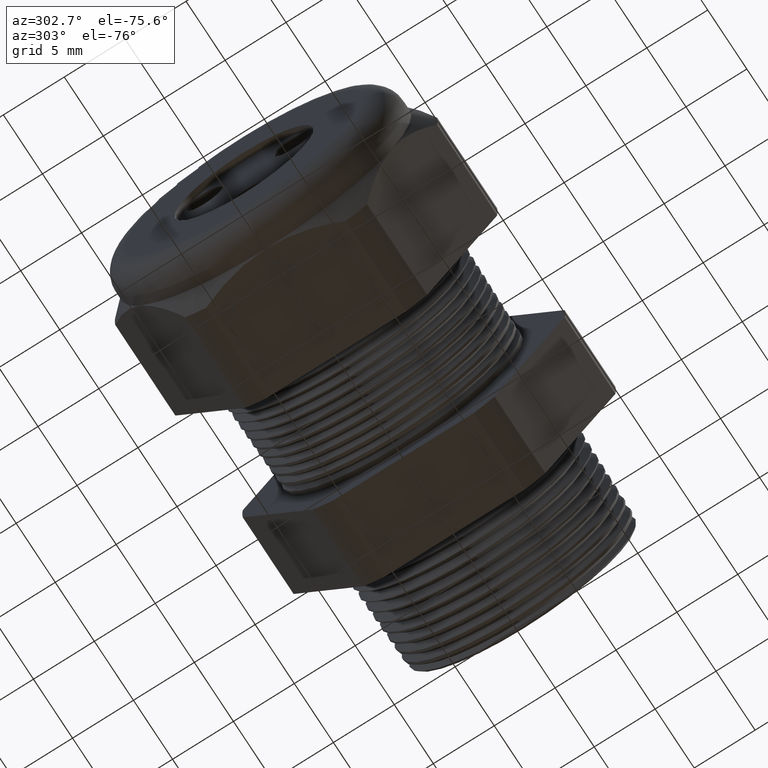
[diagram: clean part render]
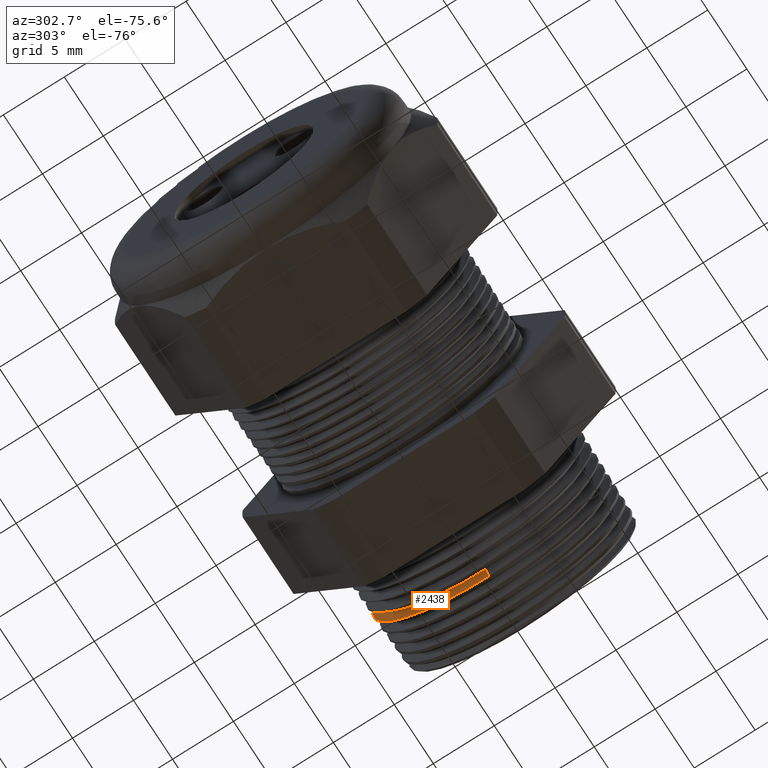
[diagram: same view with one face highlighted and labeled with its STEP entity id]
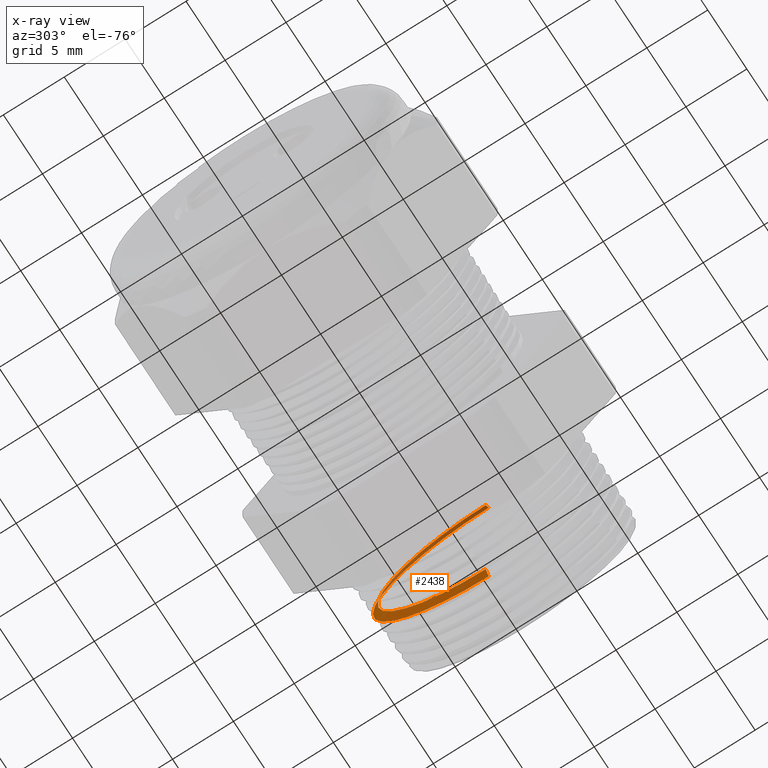
[diagram: x-ray of the same camera — body ghosted, the highlighted face saturated]
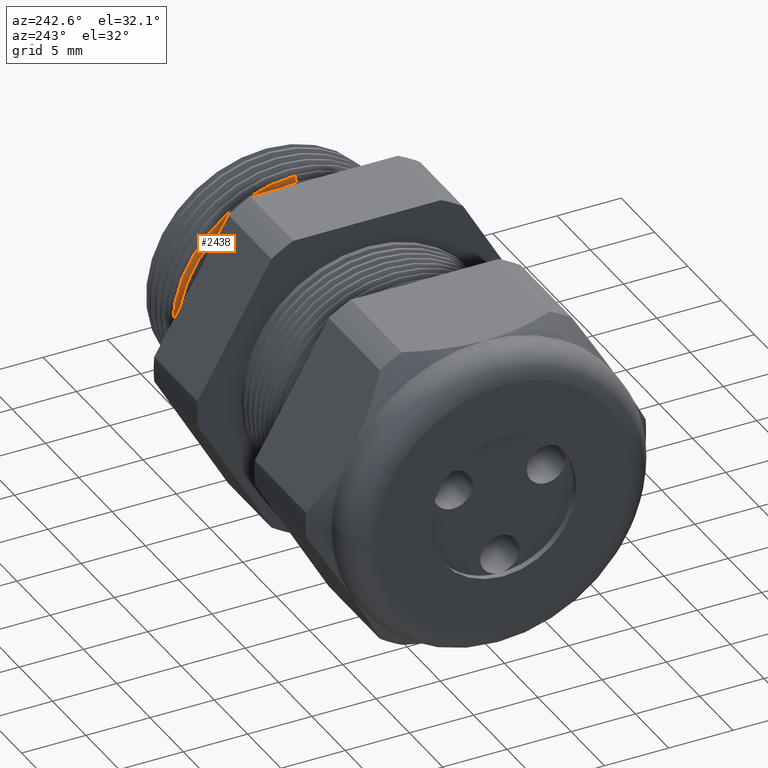
[diagram: same view with one face highlighted and labeled with its STEP entity id]
A machine part, auxiliary view. The second image highlights one B-rep face of the part: STEP entity #2438.
The next image is the same camera in x-ray: the body ghosted, the highlighted face saturated — about 30% of this face is hidden behind the body in this view.
A second angle (auxiliary view) of the same face is appended — the face is thin or edge-on in the first view.
In plain terms, the highlighted conical surface has half-angle 58.5 deg.
Its self-contained STEP definition (entity closure, byte-faithful):
#91 = CARTESIAN_POINT ( 'NONE',  ( -0.1534707356790752100, 0.0000000000000000000, 0.3489649185127733400 ) ) ;
#92 = CARTESIAN_POINT ( 'NONE',  ( -0.1534707356790752100, 4.437226321388159300E-017, -0.3489649185127733400 ) ) ;
#93 = DIRECTION ( 'NONE',  ( 0.0000000000000000000, 0.0000000000000000000, -1.000000000000000000 ) ) ;
#94 = DIRECTION ( 'NONE',  ( 1.000000000000000000, 0.0000000000000000000, 0.0000000000000000000 ) ) ;
#95 = CARTESIAN_POINT ( 'NONE',  ( -0.1534707356790752100, 0.0000000000000000000, 0.0000000000000000000 ) ) ;
#96 = AXIS2_PLACEMENT_3D ( 'NONE', #95, #94, #93 ) ;
#97 = CONICAL_SURFACE ( 'NONE', #96, 0.3489649185127733400, 1.021017612416698700 ) ;
#98 = FACE_OUTER_BOUND ( 'NONE', #2439, .T. ) ;
#99 = DIRECTION ( 'NONE',  ( 0.0000000000000000000, 0.0000000000000000000, -1.000000000000000000 ) ) ;
#100 = DIRECTION ( 'NONE',  ( 1.000000000000000000, 0.0000000000000000000, 0.0000000000000000000 ) ) ;
#101 = CARTESIAN_POINT ( 'NONE',  ( -0.1534707356790752100, 0.0000000000000000000, 0.0000000000000000000 ) ) ;
#102 = AXIS2_PLACEMENT_3D ( 'NONE', #101, #100, #99 ) ;
#103 = CIRCLE ( 'NONE', #102, 0.3489649185127733400 ) ;
#175 = DIRECTION ( 'NONE',  ( 0.5224985647159352500, 0.0000000000000000000, -0.8526401643541005000 ) ) ;
#176 = VECTOR ( 'NONE', #175, 39.37007874015748900 ) ;
#177 = CARTESIAN_POINT ( 'NONE',  ( -0.1534707356790752100, 0.0000000000000000000, -0.3489649185127733400 ) ) ;
#178 = LINE ( 'NONE', #177, #176 ) ;
#632 = CARTESIAN_POINT ( 'NONE',  ( -0.1375819195166211300, 0.0000000000000000000, 0.3748931099739570800 ) ) ;
#633 = DIRECTION ( 'NONE',  ( 0.5224985647159352500, 1.044183048100722500E-016, 0.8526401643541005000 ) ) ;
#635 = VECTOR ( 'NONE', #633, 39.37007874015748900 ) ;
#636 = CARTESIAN_POINT ( 'NONE',  ( -0.1534707356790752100, 4.273587704713848000E-017, 0.3489649185127733400 ) ) ;
#637 = LINE ( 'NONE', #636, #635 ) ;
#691 = CARTESIAN_POINT ( 'NONE',  ( -0.1375819195166211300, 4.591116471520031100E-017, -0.3748931099739570800 ) ) ;
#692 = DIRECTION ( 'NONE',  ( 0.0000000000000000000, 0.0000000000000000000, -1.000000000000000000 ) ) ;
#693 = DIRECTION ( 'NONE',  ( -1.000000000000000000, 0.0000000000000000000, 0.0000000000000000000 ) ) ;
#694 = CARTESIAN_POINT ( 'NONE',  ( -0.1375819195166211300, 0.0000000000000000000, 0.0000000000000000000 ) ) ;
#695 = AXIS2_PLACEMENT_3D ( 'NONE', #694, #693, #692 ) ;
#696 = CIRCLE ( 'NONE', #695, 0.3748931099739570800 ) ;
#2437 = EDGE_CURVE ( 'NONE', #2441, #2442, #103, .T. ) ;
#2438 = ADVANCED_FACE ( 'NONE', ( #98 ), #97, .T. ) ;
#2439 = EDGE_LOOP ( 'NONE', ( #2440, #2747, #2750, #2543 ) ) ;
#2440 = ORIENTED_EDGE ( 'NONE', *, *, #2437, .T. ) ;
#2441 = VERTEX_POINT ( 'NONE', #92 ) ;
#2442 = VERTEX_POINT ( 'NONE', #91 ) ;
#2464 = EDGE_CURVE ( 'NONE', #2441, #2752, #178, .T. ) ;
#2543 = ORIENTED_EDGE ( 'NONE', *, *, #2464, .F. ) ;
#2747 = ORIENTED_EDGE ( 'NONE', *, *, #2748, .T. ) ;
#2748 = EDGE_CURVE ( 'NONE', #2442, #2749, #637, .T. ) ;
#2749 = VERTEX_POINT ( 'NONE', #632 ) ;
#2750 = ORIENTED_EDGE ( 'NONE', *, *, #2751, .T. ) ;
#2751 = EDGE_CURVE ( 'NONE', #2749, #2752, #696, .T. ) ;
#2752 = VERTEX_POINT ( 'NONE', #691 ) ;